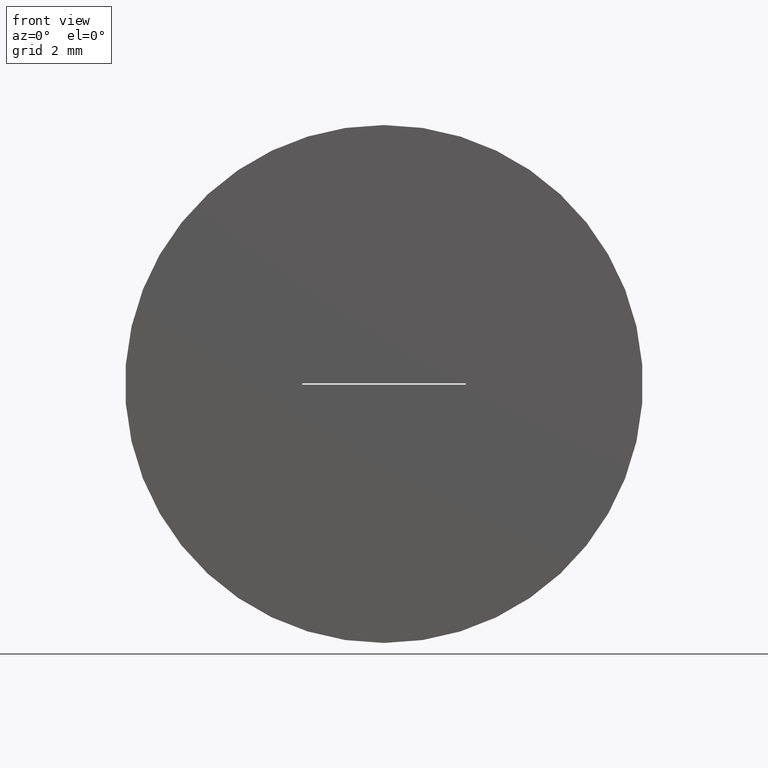
[diagram: clean part render]
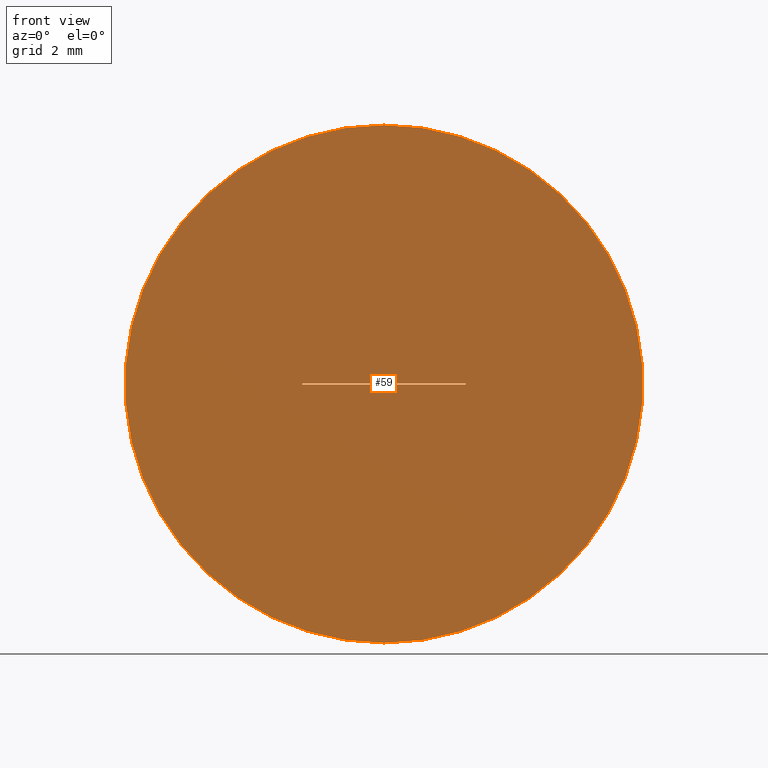
[diagram: same view with one face highlighted and labeled with its STEP entity id]
A machine part, front view. The second image highlights one B-rep face of the part: STEP entity #59.
In plain terms, the highlighted planar face has unit normal (0, 1, 0).
Its self-contained STEP definition (entity closure, byte-faithful):
#3 = DIRECTION ( 'NONE',  ( -1.000000000000000000, -0.000000000000000000, -0.000000000000000000 ) ) ;
#11 = AXIS2_PLACEMENT_3D ( 'NONE', #123, #226, #29 ) ;
#14 = VERTEX_POINT ( 'NONE', #190 ) ;
#17 = DIRECTION ( 'NONE',  ( 1.000000000000000000, 0.000000000000000000, 0.000000000000000000 ) ) ;
#25 = CARTESIAN_POINT ( 'NONE',  ( 0.000000000000000000, 0.000000000000000000, -4.750000000000000000 ) ) ;
#28 = LINE ( 'NONE', #176, #200 ) ;
#29 = DIRECTION ( 'NONE',  ( 0.000000000000000000, 0.000000000000000000, 1.000000000000000000 ) ) ;
#47 = LINE ( 'NONE', #294, #113 ) ;
#57 = ORIENTED_EDGE ( 'NONE', *, *, #283, .F. ) ;
#59 = ADVANCED_FACE ( 'NONE', ( #116, #212 ), #139, .F. ) ;
#73 = EDGE_CURVE ( 'NONE', #281, #284, #235, .T. ) ;
#76 = ORIENTED_EDGE ( 'NONE', *, *, #73, .T. ) ;
#87 = DIRECTION ( 'NONE',  ( 0.000000000000000000, -0.000000000000000000, 1.000000000000000000 ) ) ;
#90 = DIRECTION ( 'NONE',  ( -0.000000000000000000, -0.000000000000000000, -1.000000000000000000 ) ) ;
#99 = CARTESIAN_POINT ( 'NONE',  ( 1.500000000000000444, 0.000000000000000000, 0.01250000000000000243 ) ) ;
#106 = ORIENTED_EDGE ( 'NONE', *, *, #297, .F. ) ;
#107 = ORIENTED_EDGE ( 'NONE', *, *, #128, .T. ) ;
#109 = VECTOR ( 'NONE', #17, 1000.000000000000000 ) ;
#112 = LINE ( 'NONE', #307, #227 ) ;
#113 = VECTOR ( 'NONE', #171, 1000.000000000000000 ) ;
#115 = DIRECTION ( 'NONE',  ( 0.000000000000000000, 1.000000000000000000, 0.000000000000000000 ) ) ;
#116 = FACE_OUTER_BOUND ( 'NONE', #206, .T. ) ;
#121 = CARTESIAN_POINT ( 'NONE',  ( -1.499999999999999556, 0.000000000000000000, 0.01250000000000000243 ) ) ;
#123 = CARTESIAN_POINT ( 'NONE',  ( 0.000000000000000000, 0.000000000000000000, 0.000000000000000000 ) ) ;
#127 = ORIENTED_EDGE ( 'NONE', *, *, #192, .T. ) ;
#128 = EDGE_CURVE ( 'NONE', #284, #14, #112, .T. ) ;
#139 = PLANE ( 'NONE',  #263 ) ;
#157 = EDGE_CURVE ( 'NONE', #14, #158, #28, .T. ) ;
#158 = VERTEX_POINT ( 'NONE', #295 ) ;
#168 = DIRECTION ( 'NONE',  ( 0.000000000000000000, 1.000000000000000000, 0.000000000000000000 ) ) ;
#171 = DIRECTION ( 'NONE',  ( 0.000000000000000000, 0.000000000000000000, 1.000000000000000000 ) ) ;
#172 = CIRCLE ( 'NONE', #179, 4.750000000000000000 ) ;
#173 = DIRECTION ( 'NONE',  ( 0.000000000000000000, 0.000000000000000000, 1.000000000000000000 ) ) ;
#174 = EDGE_LOOP ( 'NONE', ( #107, #230, #127, #76 ) ) ;
#176 = CARTESIAN_POINT ( 'NONE',  ( -1.499999999999999556, 0.000000000000000000, -0.01249999999999999896 ) ) ;
#179 = AXIS2_PLACEMENT_3D ( 'NONE', #296, #168, #173 ) ;
#190 = CARTESIAN_POINT ( 'NONE',  ( 1.500000000000000444, 0.000000000000000000, -0.01249999999999999896 ) ) ;
#192 = EDGE_CURVE ( 'NONE', #158, #281, #47, .T. ) ;
#200 = VECTOR ( 'NONE', #3, 1000.000000000000000 ) ;
#206 = EDGE_LOOP ( 'NONE', ( #57, #106 ) ) ;
#212 = FACE_BOUND ( 'NONE', #174, .T. ) ;
#213 = CARTESIAN_POINT ( 'NONE',  ( -1.499999999999999556, 0.000000000000000000, 0.01250000000000000243 ) ) ;
#226 = DIRECTION ( 'NONE',  ( 0.000000000000000000, 1.000000000000000000, 0.000000000000000000 ) ) ;
#227 = VECTOR ( 'NONE', #90, 1000.000000000000000 ) ;
#228 = VERTEX_POINT ( 'NONE', #25 ) ;
#230 = ORIENTED_EDGE ( 'NONE', *, *, #157, .T. ) ;
#234 = VERTEX_POINT ( 'NONE', #247 ) ;
#235 = LINE ( 'NONE', #213, #109 ) ;
#236 = CIRCLE ( 'NONE', #11, 4.750000000000000000 ) ;
#243 = CARTESIAN_POINT ( 'NONE',  ( 0.000000000000000000, 0.000000000000000000, 0.000000000000000000 ) ) ;
#247 = CARTESIAN_POINT ( 'NONE',  ( 5.817072295949927426E-16, 0.000000000000000000, 4.750000000000000000 ) ) ;
#263 = AXIS2_PLACEMENT_3D ( 'NONE', #243, #115, #87 ) ;
#281 = VERTEX_POINT ( 'NONE', #121 ) ;
#283 = EDGE_CURVE ( 'NONE', #228, #234, #236, .T. ) ;
#284 = VERTEX_POINT ( 'NONE', #99 ) ;
#294 = CARTESIAN_POINT ( 'NONE',  ( -1.499999999999999556, 0.000000000000000000, -0.01249999999999999896 ) ) ;
#295 = CARTESIAN_POINT ( 'NONE',  ( -1.499999999999999556, 0.000000000000000000, -0.01249999999999999896 ) ) ;
#296 = CARTESIAN_POINT ( 'NONE',  ( 0.000000000000000000, 0.000000000000000000, 0.000000000000000000 ) ) ;
#297 = EDGE_CURVE ( 'NONE', #234, #228, #172, .T. ) ;
#307 = CARTESIAN_POINT ( 'NONE',  ( 1.500000000000000444, 0.000000000000000000, -0.01249999999999999896 ) ) ;